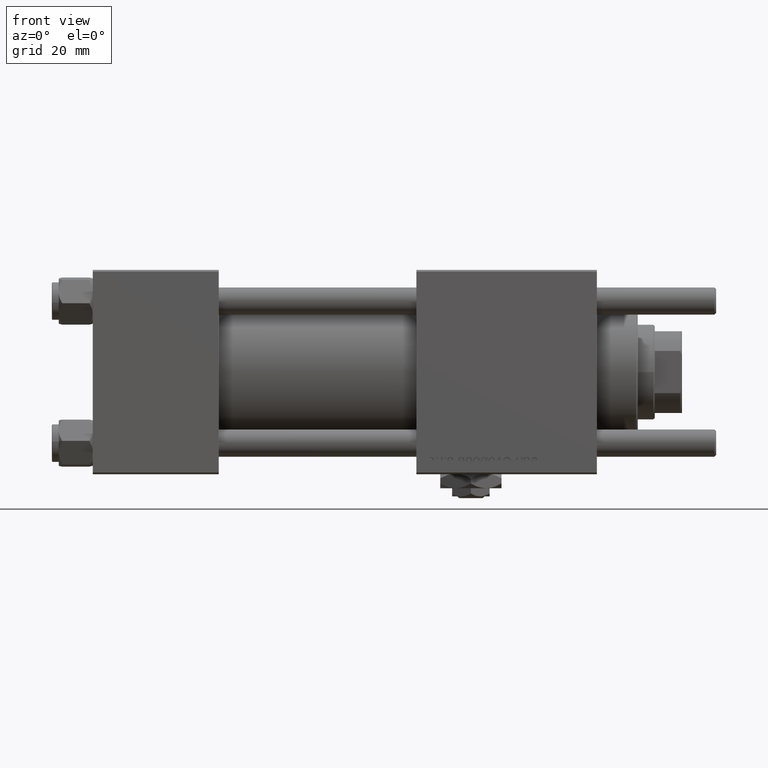
[diagram: clean part render]
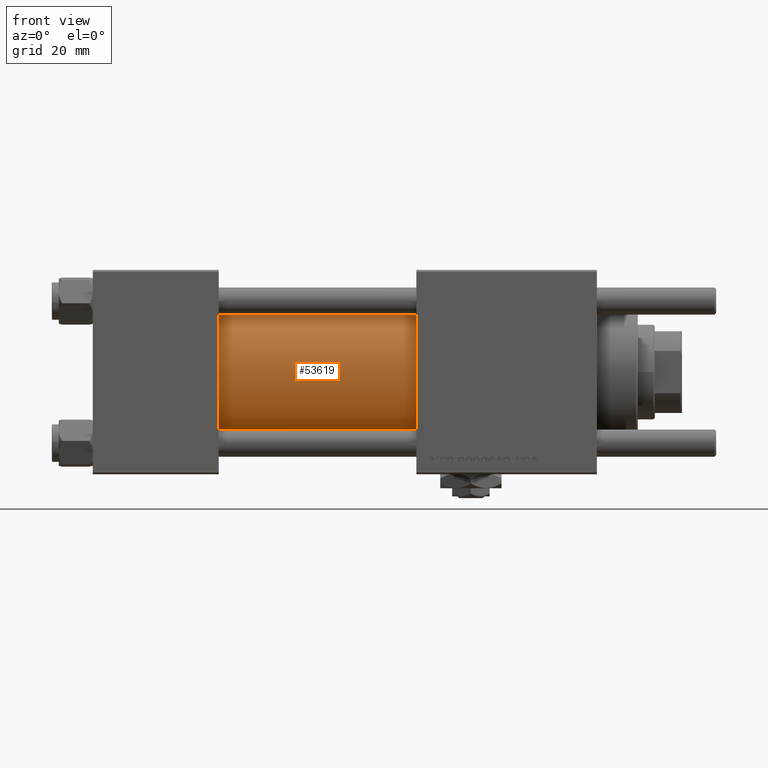
[diagram: same view with one face highlighted and labeled with its STEP entity id]
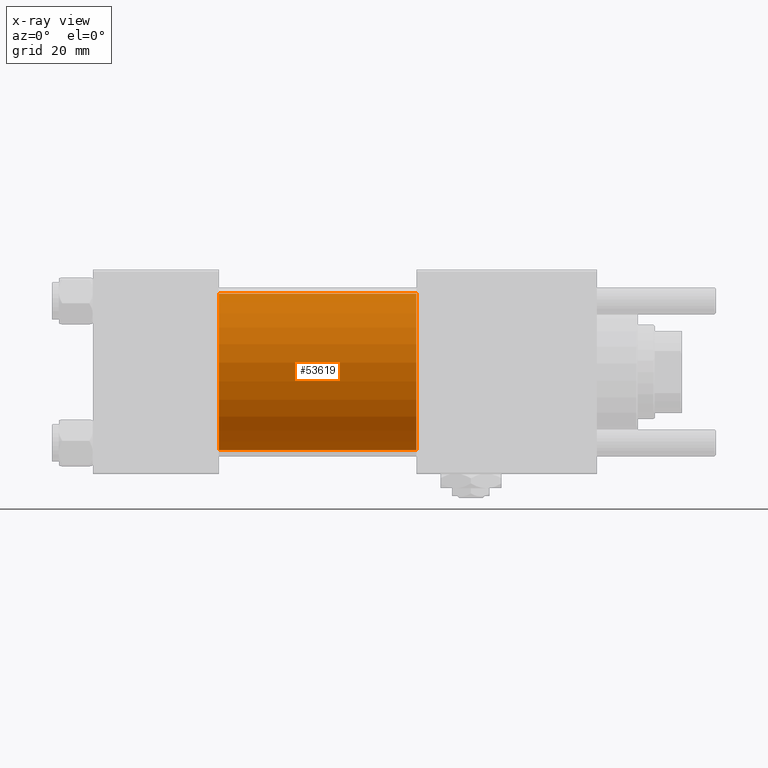
[diagram: x-ray of the same camera — body ghosted, the highlighted face saturated]
A machine part, front view. The second image highlights one B-rep face of the part: STEP entity #53619.
The next image is the same camera in x-ray: the body ghosted, the highlighted face saturated — about 0% of this face is hidden behind the body in this view.
In plain terms, the highlighted cylindrical surface (partial cylindrical patch) has radius 23 mm, axis along (-1, -0, -0).
Its self-contained STEP definition (entity closure, byte-faithful):
#352 = CARTESIAN_POINT ( 'NONE',  ( 37.00000000000000000, -2.602085213965210642E-15, 23.00000000000000000 ) ) ;
#2687 = CARTESIAN_POINT ( 'NONE',  ( 95.00000000000000000, -2.602085213965210642E-15, 0.000000000000000000 ) ) ;
#2810 = VERTEX_POINT ( 'NONE', #352 ) ;
#2987 = DIRECTION ( 'NONE',  ( -1.000000000000000000, -0.000000000000000000, -0.000000000000000000 ) ) ;
#3006 = ORIENTED_EDGE ( 'NONE', *, *, #3571, .T. ) ;
#3570 = CYLINDRICAL_SURFACE ( 'NONE', #32500, 23.00000000000000000 ) ;
#3571 = EDGE_CURVE ( 'NONE', #19592, #2810, #44585, .T. ) ;
#4010 = EDGE_CURVE ( 'NONE', #19592, #43082, #28951, .T. ) ;
#6248 = EDGE_CURVE ( 'NONE', #43082, #29352, #20921, .T. ) ;
#6816 = EDGE_CURVE ( 'NONE', #2810, #29352, #43149, .T. ) ;
#6859 = DIRECTION ( 'NONE',  ( 0.000000000000000000, 0.000000000000000000, 1.000000000000000000 ) ) ;
#12993 = DIRECTION ( 'NONE',  ( 1.000000000000000000, 0.000000000000000000, 0.000000000000000000 ) ) ;
#15691 = AXIS2_PLACEMENT_3D ( 'NONE', #18599, #12993, #21887 ) ;
#18599 = CARTESIAN_POINT ( 'NONE',  ( 95.00000000000000000, -2.602085213965210642E-15, 0.000000000000000000 ) ) ;
#19592 = VERTEX_POINT ( 'NONE', #54257 ) ;
#19938 = ORIENTED_EDGE ( 'NONE', *, *, #6816, .T. ) ;
#20386 = AXIS2_PLACEMENT_3D ( 'NONE', #29383, #57289, #57579 ) ;
#20429 = VECTOR ( 'NONE', #57660, 1000.000000000000000 ) ;
#20921 = LINE ( 'NONE', #34257, #51681 ) ;
#21390 = CARTESIAN_POINT ( 'NONE',  ( 95.00000000000000000, 2.146024240737012665E-16, -23.00000000000000000 ) ) ;
#21887 = DIRECTION ( 'NONE',  ( 0.000000000000000000, 0.000000000000000000, -1.000000000000000000 ) ) ;
#22423 = ORIENTED_EDGE ( 'NONE', *, *, #4010, .F. ) ;
#25659 = DIRECTION ( 'NONE',  ( -1.000000000000000000, -0.000000000000000000, -0.000000000000000000 ) ) ;
#25874 = CARTESIAN_POINT ( 'NONE',  ( 95.00000000000000000, -2.602085213965210642E-15, 23.00000000000000000 ) ) ;
#28951 = CIRCLE ( 'NONE', #15691, 23.00000000000000000 ) ;
#29352 = VERTEX_POINT ( 'NONE', #47536 ) ;
#29383 = CARTESIAN_POINT ( 'NONE',  ( 37.00000000000000000, -2.602085213965210642E-15, 0.000000000000000000 ) ) ;
#32500 = AXIS2_PLACEMENT_3D ( 'NONE', #2687, #2987, #6859 ) ;
#34257 = CARTESIAN_POINT ( 'NONE',  ( 95.00000000000000000, 2.146024240737012665E-16, -23.00000000000000000 ) ) ;
#35424 = EDGE_LOOP ( 'NONE', ( #41062, #22423, #3006, #19938 ) ) ;
#38880 = FACE_OUTER_BOUND ( 'NONE', #35424, .T. ) ;
#41062 = ORIENTED_EDGE ( 'NONE', *, *, #6248, .F. ) ;
#43082 = VERTEX_POINT ( 'NONE', #21390 ) ;
#43149 = CIRCLE ( 'NONE', #20386, 23.00000000000000000 ) ;
#44585 = LINE ( 'NONE', #25874, #20429 ) ;
#47536 = CARTESIAN_POINT ( 'NONE',  ( 37.00000000000000000, 2.146024240737012665E-16, -23.00000000000000000 ) ) ;
#51681 = VECTOR ( 'NONE', #25659, 1000.000000000000000 ) ;
#53619 = ADVANCED_FACE ( 'NONE', ( #38880 ), #3570, .T. ) ;
#54257 = CARTESIAN_POINT ( 'NONE',  ( 95.00000000000000000, -2.602085213965210642E-15, 23.00000000000000000 ) ) ;
#57289 = DIRECTION ( 'NONE',  ( 1.000000000000000000, -0.000000000000000000, 0.000000000000000000 ) ) ;
#57579 = DIRECTION ( 'NONE',  ( 0.000000000000000000, 0.000000000000000000, 1.000000000000000000 ) ) ;
#57660 = DIRECTION ( 'NONE',  ( -1.000000000000000000, -0.000000000000000000, -0.000000000000000000 ) ) ;